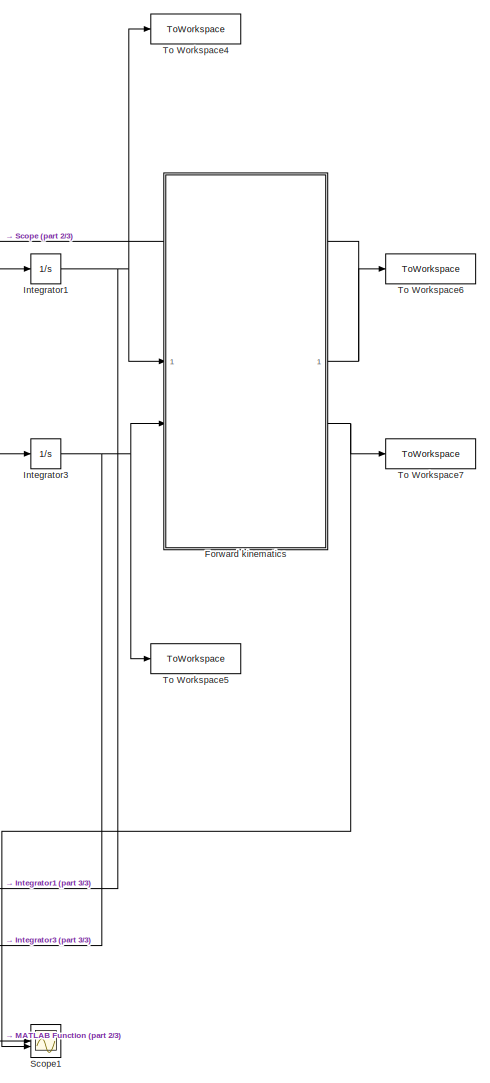
[diagram: root canvas - part 1/3, right side, full height]
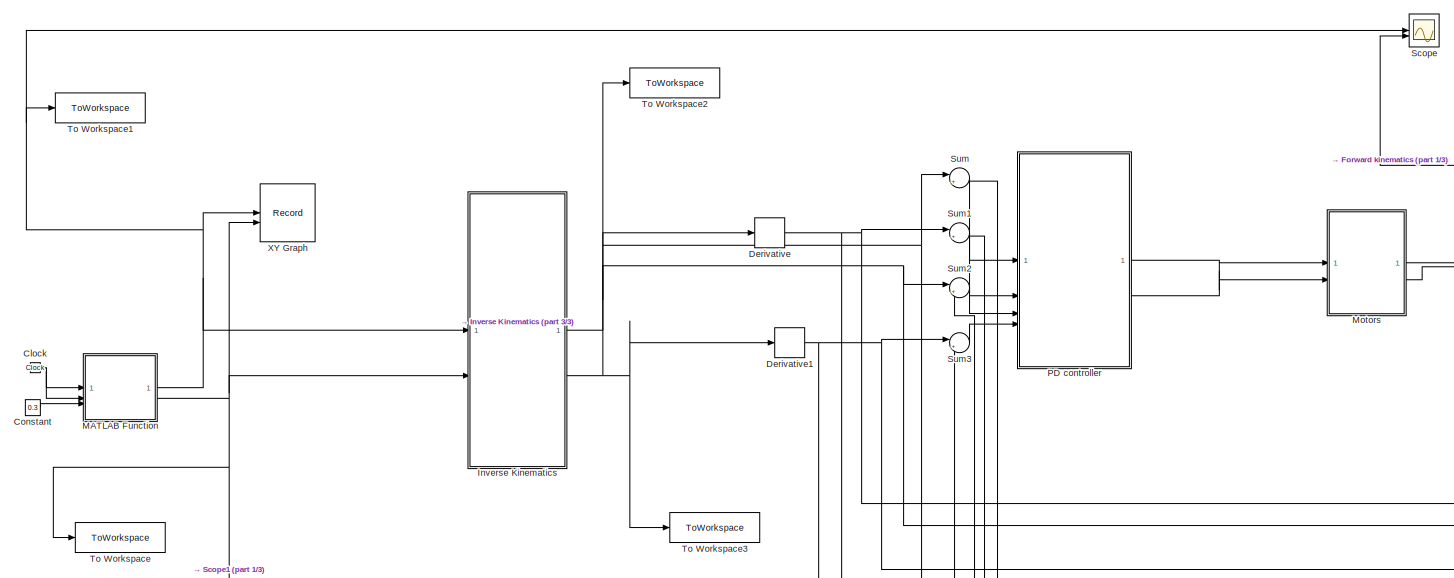
[diagram: root canvas - part 2/3, middle left region]
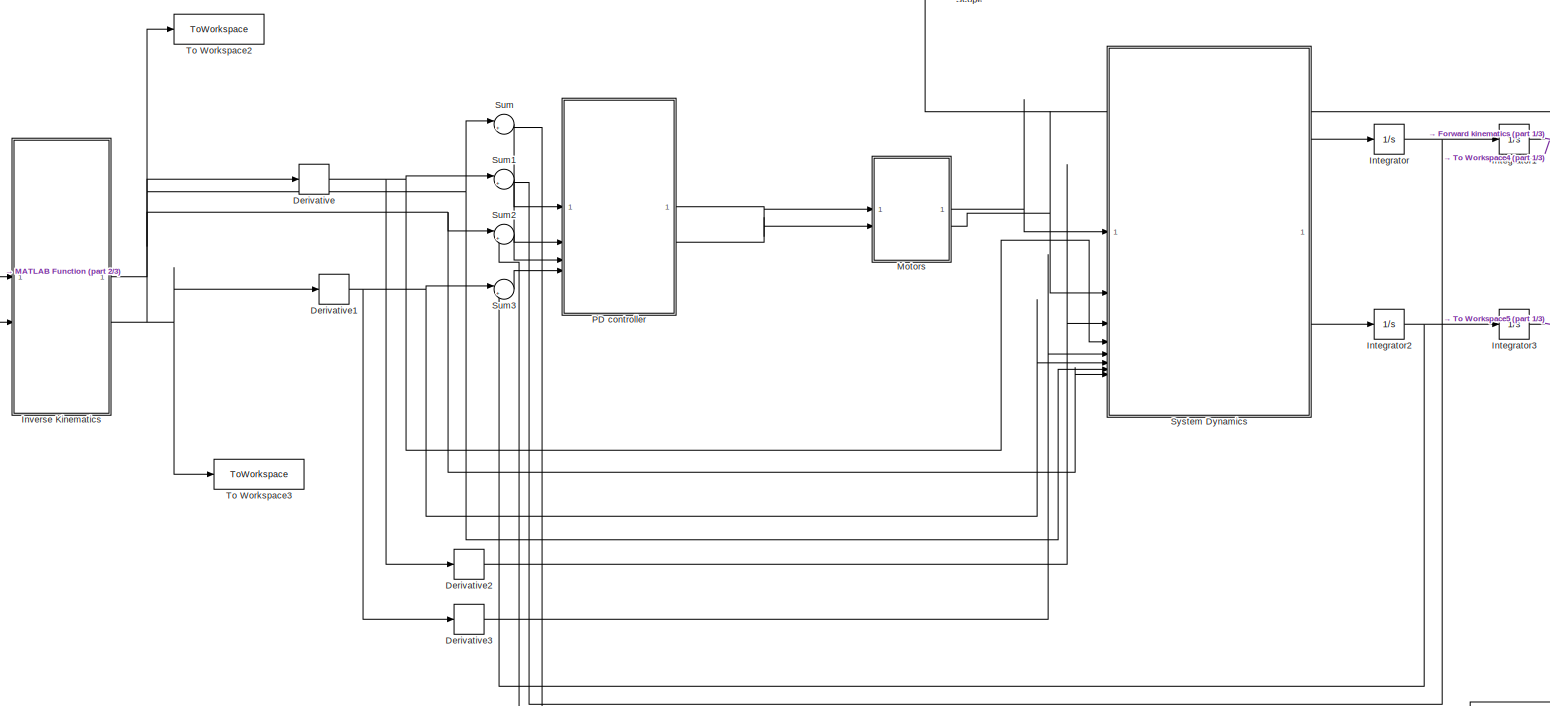
[diagram: root canvas - part 3/3, central region]
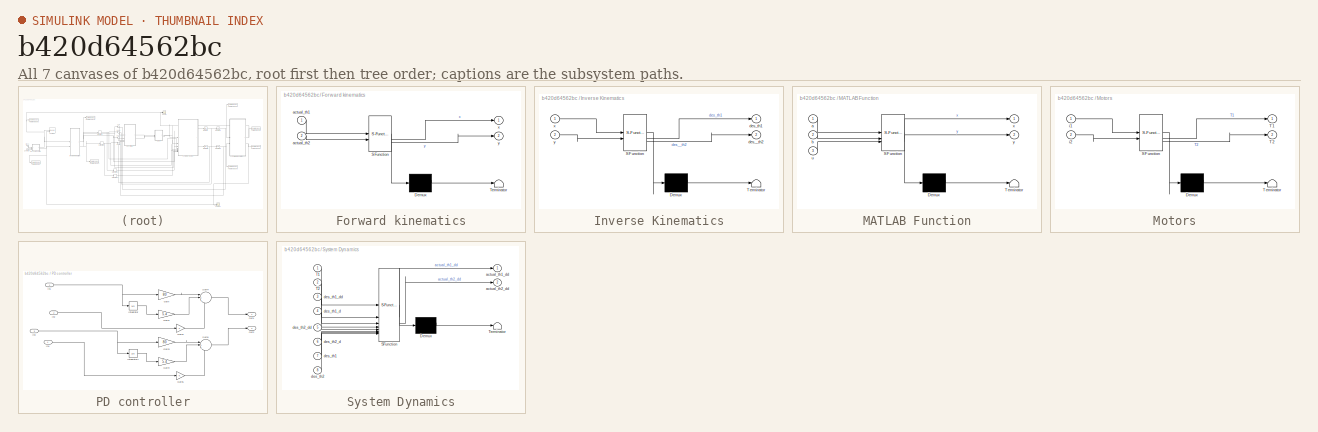
[diagram: thumbnail index - all 7 canvases of the model, root first then tree order]
MODEL slx_b420d64562bc
KIND model
CONFIG AbsTol = auto
CONFIG EnableMultiTasking = off
CONFIG FixedStep = auto
CONFIG MaxStep = auto
CONFIG MinStep = auto
CONFIG RelTol = 1e-3
CONFIG SampleTimeConstraint = Unconstrained
CONFIG SolverName = VariableStepAuto
CONFIG StartTime = 0.0
CONFIG StopTime = 360
BLOCK [Clock] Clock
  Decimation = 360
BLOCK [Constant] Constant
  Value = 0.3
BLOCK [Derivative] Derivative
BLOCK [Derivative] Derivative1
BLOCK [Derivative] Derivative2
BLOCK [Derivative] Derivative3
BLOCK [SubSystem] Forward kinematics
  ErrorFcn = Stateflow.Translate.translate
  PermitHierarchicalResolution = ExplicitOnly
  SFBlockType = MATLAB Function
  TreatAsAtomicUnit = on
BLOCK [Demux] Forward kinematics/ Demux 
  Outputs = 1
BLOCK [S-Function] Forward kinematics/ SFunction 
  EnableBusSupport = on
  FunctionName = sf_sfun
  PortCounts = [2 3]
  SFcnIsStateOwnerBlock = off
  SFunctionDeploymentMode = off
  Tag = Stateflow S-Function 5
BLOCK [Terminator] Forward kinematics/ Terminator 
BLOCK [Inport] Forward kinematics/actual_th1
BLOCK [Inport] Forward kinematics/actual_th2
  Port = 2
BLOCK [Outport] Forward kinematics/x
BLOCK [Outport] Forward kinematics/y
  Port = 2
BLOCK [Integrator] Integrator
BLOCK [Integrator] Integrator1
BLOCK [Integrator] Integrator2
BLOCK [Integrator] Integrator3
BLOCK [SubSystem] Inverse Kinematics
  ErrorFcn = Stateflow.Translate.translate
  PermitHierarchicalResolution = ExplicitOnly
  SFBlockType = MATLAB Function
  TreatAsAtomicUnit = on
BLOCK [Demux] Inverse Kinematics/ Demux 
  Outputs = 1
BLOCK [S-Function] Inverse Kinematics/ SFunction 
  EnableBusSupport = on
  FunctionName = sf_sfun
  PortCounts = [2 3]
  SFcnIsStateOwnerBlock = off
  SFunctionDeploymentMode = off
  Tag = Stateflow S-Function 1
BLOCK [Terminator] Inverse Kinematics/ Terminator 
BLOCK [Outport] Inverse Kinematics/des__th2
  Port = 2
BLOCK [Outport] Inverse Kinematics/des_th1
BLOCK [Inport] Inverse Kinematics/x
BLOCK [Inport] Inverse Kinematics/y
  Port = 2
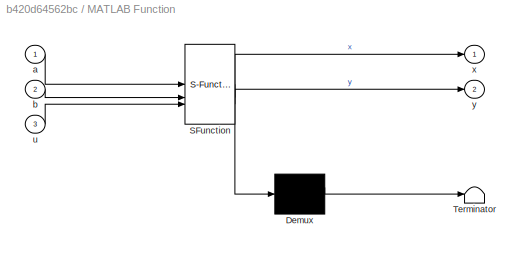
BLOCK [SubSystem] MATLAB Function
  ErrorFcn = Stateflow.Translate.translate
  PermitHierarchicalResolution = ExplicitOnly
  SFBlockType = MATLAB Function
  TreatAsAtomicUnit = on
BLOCK [Demux] MATLAB Function/ Demux 
  Outputs = 1
BLOCK [S-Function] MATLAB Function/ SFunction 
  EnableBusSupport = on
  FunctionName = sf_sfun
  PortCounts = [3 3]
  SFcnIsStateOwnerBlock = off
  SFunctionDeploymentMode = off
  Tag = Stateflow S-Function 2
BLOCK [Terminator] MATLAB Function/ Terminator 
BLOCK [Inport] MATLAB Function/a
BLOCK [Inport] MATLAB Function/b
  Port = 2
BLOCK [Inport] MATLAB Function/u
  Port = 3
BLOCK [Outport] MATLAB Function/x
BLOCK [Outport] MATLAB Function/y
  Port = 2
BLOCK [SubSystem] Motors
  ErrorFcn = Stateflow.Translate.translate
  PermitHierarchicalResolution = ExplicitOnly
  SFBlockType = MATLAB Function
  TreatAsAtomicUnit = on
BLOCK [Demux] Motors/ Demux 
  Outputs = 1
BLOCK [S-Function] Motors/ SFunction 
  EnableBusSupport = on
  FunctionName = sf_sfun
  PortCounts = [2 3]
  SFcnIsStateOwnerBlock = off
  SFunctionDeploymentMode = off
  Tag = Stateflow S-Function 3
BLOCK [Terminator] Motors/ Terminator 
BLOCK [Outport] Motors/T1
BLOCK [Outport] Motors/T2
  Port = 2
BLOCK [Inport] Motors/i1
BLOCK [Inport] Motors/i2
  Port = 2
BLOCK [SubSystem] PD controller
BLOCK [Gain] PD controller/Gain
  Gain = 80
BLOCK [Gain] PD controller/Gain1
  Gain = 5.4
BLOCK [Gain] PD controller/Gain2
BLOCK [Gain] PD controller/Gain3
  Gain = 80
BLOCK [Gain] PD controller/Gain4
  Gain = 5.4
BLOCK [Gain] PD controller/Gain5
BLOCK [Inport] PD controller/In1
BLOCK [Inport] PD controller/In2
  Port = 2
BLOCK [Inport] PD controller/In3
  Port = 3
BLOCK [Inport] PD controller/In4
  Port = 4
BLOCK [Integrator] PD controller/Integrator
BLOCK [Integrator] PD controller/Integrator1
BLOCK [Outport] PD controller/Out1
BLOCK [Outport] PD controller/Out2
  Port = 2
BLOCK [Sum] PD controller/Sum4
  Inputs = |+++
BLOCK [Sum] PD controller/Sum5
  Inputs = |+++
BLOCK [Scope] Scope
  Floating = off
  NumInputPorts = 2
  ScopeSpecificationString = Simulink.scopes.TimeScopeBlockCfg('CurrentConfiguration', extmgr.ConfigurationSet(extmgr.Configuration('Core','General UI',true),extmgr.Configuration('Core','Source UI',true),extmgr.Configuration('Sources','WiredSimulink',true),extmgr.Configuration('Visuals','Time Domain',true,'SerializedDisplays',{struct('MinYLimReal','0.41215','MaxYLimReal','3.28754','YLabelReal','','MinYLimMag','0.41215','MaxYL...<+1476ch>
BLOCK [Scope] Scope1
  Floating = off
  NumInputPorts = 2
  ScopeSpecificationString = Simulink.scopes.TimeScopeBlockCfg('CurrentConfiguration', extmgr.ConfigurationSet(extmgr.Configuration('Core','General UI',true),extmgr.Configuration('Core','Source UI',true),extmgr.Configuration('Sources','WiredSimulink',true,'DataLoggingVariableName','ScopeData1'),extmgr.Configuration('Visuals','Time Domain',true,'SerializedDisplays',{struct('MinYLimReal','-0.16289','MaxYLimReal','1.46597','YLab...<+1488ch>
BLOCK [Sum] Sum
  Inputs = |+-
BLOCK [Sum] Sum1
  Inputs = |+-
BLOCK [Sum] Sum2
  Inputs = |+-
BLOCK [Sum] Sum3
  Inputs = |+-
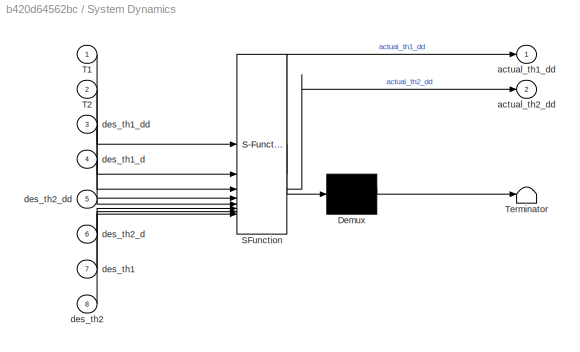
BLOCK [SubSystem] System Dynamics
  ErrorFcn = Stateflow.Translate.translate
  PermitHierarchicalResolution = ExplicitOnly
  SFBlockType = MATLAB Function
  TreatAsAtomicUnit = on
BLOCK [Demux] System Dynamics/ Demux 
  Outputs = 1
BLOCK [S-Function] System Dynamics/ SFunction 
  EnableBusSupport = on
  FunctionName = sf_sfun
  PortCounts = [8 3]
  SFcnIsStateOwnerBlock = off
  SFunctionDeploymentMode = off
  Tag = Stateflow S-Function 4
BLOCK [Terminator] System Dynamics/ Terminator 
BLOCK [Inport] System Dynamics/T1
BLOCK [Inport] System Dynamics/T2
  Port = 2
BLOCK [Outport] System Dynamics/actual_th1_dd
BLOCK [Outport] System Dynamics/actual_th2_dd
  Port = 2
BLOCK [Inport] System Dynamics/des_th1
  Port = 7
BLOCK [Inport] System Dynamics/des_th1_d
  Port = 4
BLOCK [Inport] System Dynamics/des_th1_dd
  Port = 3
BLOCK [Inport] System Dynamics/des_th2
  Port = 8
BLOCK [Inport] System Dynamics/des_th2_d
  Port = 6
BLOCK [Inport] System Dynamics/des_th2_dd
  Port = 5
BLOCK [ToWorkspace] To Workspace
  FixptAsFi = on
  MaxDataPoints = inf
  SampleTime = -1
  VariableName = yd
BLOCK [ToWorkspace] To Workspace1
  FixptAsFi = on
  MaxDataPoints = inf
  SampleTime = -1
  VariableName = xd
BLOCK [ToWorkspace] To Workspace2
  FixptAsFi = on
  MaxDataPoints = inf
  SampleTime = -1
  VariableName = des_th1
BLOCK [ToWorkspace] To Workspace3
  FixptAsFi = on
  MaxDataPoints = inf
  SampleTime = -1
  VariableName = des_th2
BLOCK [ToWorkspace] To Workspace4
  FixptAsFi = on
  MaxDataPoints = inf
  SampleTime = -1
  VariableName = actual_th1
BLOCK [ToWorkspace] To Workspace5
  FixptAsFi = on
  MaxDataPoints = inf
  SampleTime = -1
  VariableName = actual_th2
BLOCK [ToWorkspace] To Workspace6
  FixptAsFi = on
  MaxDataPoints = inf
  SampleTime = -1
  VariableName = x
BLOCK [ToWorkspace] To Workspace7
  FixptAsFi = on
  MaxDataPoints = inf
  SampleTime = -1
  VariableName = y
BLOCK [Record] XY Graph
  CompatibilityTag = XY
  FileSettingsInternal = {"entries":[{"content":{"excelSettings":{"content":{},"type":"Streamout.ExcelSettings"}},"type":"Streamout.FileSettingStorage","uuid":""}],"packageUris":["http:\/\/schema.mathworks.com\/mf0\/streamout_blocks\/R2020a"],"version":"1.0"}
  Layout = [1 1]
  SignalsInternal = {"entries":[{"content":{"signals":[{"content":{"blockPath":[],"dimensions":[1],"domain":"","lineColor":"#a2142f","plots":[ 1 ],"port":1,"sid":[""],"signalID":1,"signalName":"MATLAB Function:1"},"type":"RecordBlkView.Signal","uuid":""},{"content":{"blockPath":[],"dimensions":[1],"domain":"","lineColor":"#139fff","plots":[ 1 ],"port":2,"sid":[""],"signalID":2,"signalName":"MATLAB Function:2"},"type"...<+180ch>
  VisualizationBindings = {"xyplotplugin":{"info":[{"series":[{"bindingParametersList":[{"parameter":"X-Axis","signalID":1,"signalName":"MATLAB Function:1"},{"parameter":"Y-Axis","signalID":2,"signalName":"MATLAB Function:2"}],"seriesID":0}],"subplotID":1}]}}
NET Clock:1 -> MATLAB Function:1, MATLAB Function:2
LINE Constant:1 -> MATLAB Function:3
NET Derivative1:1 -> Derivative3:1, Sum3:1, System Dynamics:6
LINE Derivative2:1 -> System Dynamics:3
LINE Derivative3:1 -> System Dynamics:5
NET Derivative:1 -> Derivative2:1, Sum1:1, System Dynamics:4
NET Forward kinematics:1 -> Scope:2, To Workspace6:1
NET Forward kinematics:2 -> Scope1:2, To Workspace7:1
NET Integrator1:1 -> Forward kinematics:1, Sum:2, To Workspace4:1
NET Integrator2:1 -> Integrator3:1, Sum3:2
NET Integrator3:1 -> Forward kinematics:2, Sum2:2, To Workspace5:1
NET Integrator:1 -> Integrator1:1, Sum1:2
NET Inverse Kinematics:1 -> Derivative:1, Sum:1, System Dynamics:7, To Workspace2:1
NET Inverse Kinematics:2 -> Derivative1:1, Sum2:1, System Dynamics:8, To Workspace3:1
NET MATLAB Function:1 -> Inverse Kinematics:1, Scope:1, To Workspace1:1, XY Graph:1
NET MATLAB Function:2 -> Inverse Kinematics:2, Scope1:1, To Workspace:1, XY Graph:2
LINE Motors:1 -> System Dynamics:1
LINE Motors:2 -> System Dynamics:2
LINE PD controller/Gain1:1 -> PD controller/Sum4:2
LINE PD controller/Gain2:1 -> PD controller/Sum4:3
LINE PD controller/Gain3:1 -> PD controller/Sum5:1
LINE PD controller/Gain4:1 -> PD controller/Sum5:2
LINE PD controller/Gain5:1 -> PD controller/Sum5:3
LINE PD controller/Gain:1 -> PD controller/Sum4:1
NET PD controller/In1:1 -> PD controller/Gain:1, PD controller/Integrator:1
LINE PD controller/In2:1 -> PD controller/Gain2:1
NET PD controller/In3:1 -> PD controller/Gain3:1, PD controller/Integrator1:1
LINE PD controller/In4:1 -> PD controller/Gain5:1
LINE PD controller/Integrator1:1 -> PD controller/Gain4:1
LINE PD controller/Integrator:1 -> PD controller/Gain1:1
LINE PD controller/Sum4:1 -> PD controller/Out1:1
LINE PD controller/Sum5:1 -> PD controller/Out2:1
LINE PD controller:1 -> Motors:1
LINE PD controller:2 -> Motors:2
LINE Sum1:1 -> PD controller:2
LINE Sum2:1 -> PD controller:3
LINE Sum3:1 -> PD controller:4
LINE Sum:1 -> PD controller:1
LINE System Dynamics:1 -> Integrator:1
LINE System Dynamics:2 -> Integrator2:1
note: NET lines group one-source signal fan-out (src -> all destinations, sorted); 1:1 wires keep LINE
CHART Inverse Kinematics states=1 transitions=1
  STATE_LABEL 'eML_blk_kernel()'
  STATE_LABEL 'SCRIPT:\nfunction [des_th1,des__th2]= fcn(x,y)\nL1=2;\nL2=1;\nM1=1;\nM2=0.5;\nc2= (x^2 +y^2 -L1^2 -L2^2)/(2*L1*L2)\ns2=(1-c2^2)^0.5\nK1= L1+L2*c2\nK2=L2*s2\ndes_th1= atan2 (y,x)-atan2(K2,K1);\ndes__th2=atan2 (s2,c2);'
CHART MATLAB Function states=1 transitions=1
  STATE_LABEL 'eML_blk_kernel()'
  STATE_LABEL 'SCRIPT:\nfunction [x, y] = fcn(a, b, u)\n\nx = 1 + u*cosd(a);\ny = 1 + u*sind(b);\n'
CHART Motors states=1 transitions=1
  STATE_LABEL 'eML_blk_kernel()'
  STATE_LABEL 'SCRIPT:\nfunction [T1,T2]= fcn(i1,i2)\nkt=10;\nT1=kt*i1;\nkt=10;\nT2=kt*i2;\n\n'
CHART System Dynamics states=1 transitions=1
  STATE_LABEL 'eML_blk_kernel()'
  STATE_LABEL 'SCRIPT:\nfunction [actual_th1_dd,actual_th2_dd]= fcn(T1, T2,des_th1_dd,des_th1_d,des_th2_dd,des_th2_d,des_th1,des_th2)\n\n\n\nN=1;\njm1=0.01;\njm2=0.01;\ncm1=0.1;\ncm2=0.1;\nM1=1;\nM2=0.5;\nL1=2;\nL2=1;\ng=9.8;\n\nth1=des_th1\nth2=des_th2\nth1dd=des_th1_dd\nth1d=des_th1_d\nth2dd=des_th2_dd\nth2d=des_th2_d\n\nM=[((M1+M2)*(L1^2)+ (M2*L2^2)+ (2*M2*L1*L2*cos(th2)))  (M2*L2^2+ M2*L1*L2*cos(th2));\n   (M2*L2^2+M2*L1*L2*cos(th2...<+517ch>'
CHART Forward kinematics states=1 transitions=1
  STATE_LABEL 'eML_blk_kernel()'
  STATE_LABEL 'SCRIPT:\nfunction [x,y]= fcn(actual_th1,actual_th2)\n\nL1=2;\nL2=1;\n\n\nx=L2*cos(actual_th1 + actual_th2) + L1*cos(actual_th1)\ny=L2*sin(actual_th1 + actual_th2) + L1*sin(actual_th1)\n'
CHART  states=0 transitions=0
CHART  states=0 transitions=0
CHART  states=0 transitions=0
CHART  states=0 transitions=0
CHART  states=0 transitions=0
